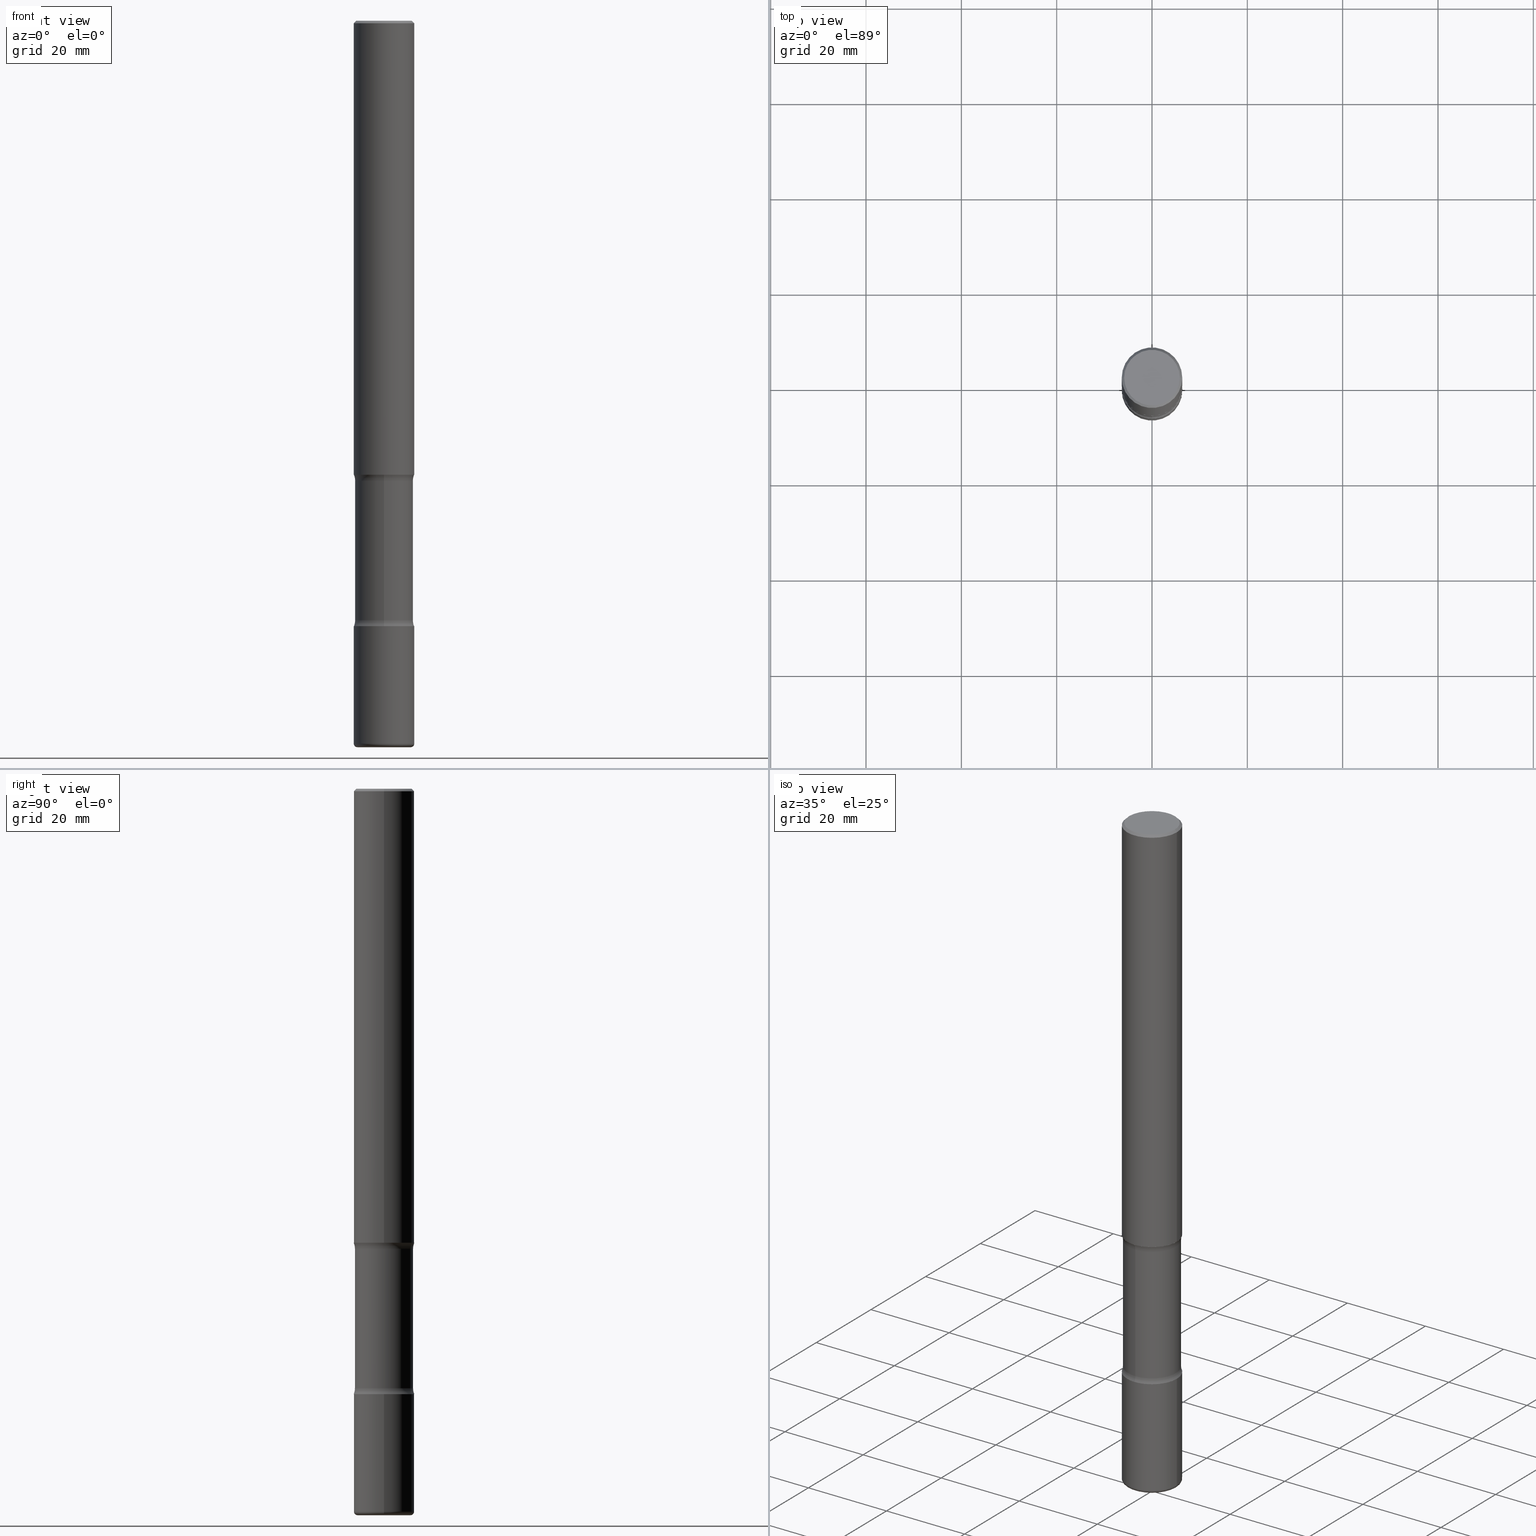
[diagram: canonical four-view strip — front | top / right | iso, engineering-drawing reading convention]
A machine part, canonical four-view strip (front | top / right | iso — engineering-drawing reading convention). The complete STEP part file that produces these views, byte-faithful:
ISO-10303-21;
HEADER;
FILE_DESCRIPTION (( 'STEP AP203' ),
    '1' );
FILE_NAME ('36462.STEP',
    '2024-03-01T23:55:01',
    ( '' ),
    ( '' ),
    'SwSTEP 2.0',
    'SolidWorks 2023',
    '' );
FILE_SCHEMA (( 'CONFIG_CONTROL_DESIGN' ));
ENDSEC;

DATA;
#1 = DIRECTION ( 'NONE',  ( -2.445468806185136597E-29, 3.491481338843145583E-15, 1.000000000000000000 ) ) ;
#2 = FACE_OUTER_BOUND ( 'NONE', #271, .T. ) ;
#3 = AXIS2_PLACEMENT_3D ( 'NONE', #476, #130, #420 ) ;
#4 = EDGE_CURVE ( 'NONE', #346, #444, #538, .T. ) ;
#5 = ORIENTED_EDGE ( 'NONE', *, *, #280, .T. ) ;
#6 = VERTEX_POINT ( 'NONE', #201 ) ;
#7 = AXIS2_PLACEMENT_3D ( 'NONE', #60, #192, #366 ) ;
#8 = AXIS2_PLACEMENT_3D ( 'NONE', #170, #344, #518 ) ;
#9 = EDGE_LOOP ( 'NONE', ( #102, #279, #296, #72 ) ) ;
#10 = DIRECTION ( 'NONE',  ( 6.982962677686265922E-15, 1.000000000000000000, -3.250820491503775713E-15 ) ) ;
#11 = VERTEX_POINT ( 'NONE', #368 ) ;
#12 = DIRECTION ( 'NONE',  ( 6.860497997771532351E-15, 1.000000000000000000, 0.000000000000000000 ) ) ;
#13 = FACE_OUTER_BOUND ( 'NONE', #212, .T. ) ;
#14 = CYLINDRICAL_SURFACE ( 'NONE', #459, 0.2400000000000001021 ) ;
#15 = EDGE_LOOP ( 'NONE', ( #172, #305 ) ) ;
#16 = DIRECTION ( 'NONE',  ( 2.613521377680253946E-29, -3.250820491503775713E-15, -1.000000000000000000 ) ) ;
#17 = TOROIDAL_SURFACE ( 'NONE', #26, 0.2200000000000002509, 0.03000000000000022787 ) ;
#18 = CARTESIAN_POINT ( 'NONE',  ( 1.484086540860593637E-28, -2.070822718571950481E-14, -6.000000000000000888 ) ) ;
#19 = LOCAL_TIME ( 18, 55, 1.000000000000000000, #281 ) ;
#20 = ORIENTED_EDGE ( 'NONE', *, *, #76, .T. ) ;
#21 = CARTESIAN_POINT ( 'NONE',  ( 0.2500000000000002220, -1.745740669421568255E-15, 1.219044193948984929E-29 ) ) ;
#22 = FACE_OUTER_BOUND ( 'NONE', #219, .T. ) ;
#23 = ORIENTED_EDGE ( 'NONE', *, *, #184, .F. ) ;
#24 = APPROVAL_ROLE ( '' ) ;
#25 = DIRECTION ( 'NONE',  ( -1.000000000000000000, 6.982962677686265922E-15, -4.883557194083112340E-29 ) ) ;
#26 = AXIS2_PLACEMENT_3D ( 'NONE', #367, #240, #387 ) ;
#27 = CARTESIAN_POINT ( 'NONE',  ( 8.960442308825365691E-29, -1.339388107983601044E-14, -3.750000000000000000 ) ) ;
#28 = ORGANIZATION ( 'UNSPECIFIED', 'UNSPECIFIED', '' ) ;
#29 = DESIGN_CONTEXT ( 'detailed design', #516, 'design' ) ;
#30 = DIRECTION ( 'NONE',  ( -1.000000000000000000, 7.105427357600937172E-15, 0.000000000000000000 ) ) ;
#31 = CARTESIAN_POINT ( 'NONE',  ( 1.459944877292526494E-28, -2.084414359289357934E-14, -5.969999999999999751 ) ) ;
#32 = DIRECTION ( 'NONE',  ( 1.000000000000000000, -6.982962677686265922E-15, 0.000000000000000000 ) ) ;
#33 = EDGE_CURVE ( 'NONE', #54, #526, #449, .T. ) ;
#34 = VECTOR ( 'NONE', #105, 39.37007874015748143 ) ;
#35 = ADVANCED_FACE ( 'NONE', ( #505 ), #138, .F. ) ;
#36 = DIRECTION ( 'NONE',  ( 1.000000000000000000, -6.982962677686267499E-15, 0.000000000000000000 ) ) ;
#37 = EDGE_LOOP ( 'NONE', ( #451, #287 ) ) ;
#38 = CARTESIAN_POINT ( 'NONE',  ( 0.000000000000000000, 0.000000000000000000, 0.000000000000000000 ) ) ;
#39 = DIRECTION ( 'NONE',  ( 6.982962677686265922E-15, 1.000000000000000000, -4.370956789862817994E-15 ) ) ;
#40 = ORIENTED_EDGE ( 'NONE', *, *, #146, .T. ) ;
#41 = AXIS2_PLACEMENT_3D ( 'NONE', #531, #301, #439 ) ;
#42 = AXIS2_PLACEMENT_3D ( 'NONE', #38, #341, #426 ) ;
#43 = CIRCLE ( 'NONE', #160, 0.03000000000000022787 ) ;
#44 = EDGE_LOOP ( 'NONE', ( #23, #151, #320, #530 ) ) ;
#45 = DIRECTION ( 'NONE',  ( -2.445468806185136877E-29, 3.491481338843145188E-15, 1.000000000000000000 ) ) ;
#46 = PLANE ( 'NONE',  #549 ) ;
#47 = EDGE_CURVE ( 'NONE', #479, #440, #407, .T. ) ;
#48 = EDGE_LOOP ( 'NONE', ( #535, #231 ) ) ;
#49 = CARTESIAN_POINT ( 'NONE',  ( 1.745740669421659566E-15, 0.2499999999999870937, -3.750000000000000888 ) ) ;
#50 = ORIENTED_EDGE ( 'NONE', *, *, #288, .F. ) ;
#51 = FACE_OUTER_BOUND ( 'NONE', #429, .T. ) ;
#52 = AXIS2_PLACEMENT_3D ( 'NONE', #333, #463, #120 ) ;
#53 = AXIS2_PLACEMENT_3D ( 'NONE', #195, #491, #158 ) ;
#54 = VERTEX_POINT ( 'NONE', #157 ) ;
#55 = DIRECTION ( 'NONE',  ( 2.613521377680253386E-29, -3.250820491503775713E-15, -1.000000000000000000 ) ) ;
#56 = CYLINDRICAL_SURFACE ( 'NONE', #63, 0.2500000000000002220 ) ;
#57 = EDGE_LOOP ( 'NONE', ( #396, #257, #490, #523 ) ) ;
#58 = CARTESIAN_POINT ( 'NONE',  ( 4.890937612370289799E-31, -6.982962677686315028E-17, -0.02000000000000006981 ) ) ;
#59 = CC_DESIGN_PERSON_AND_ORGANIZATION_ASSIGNMENT ( #335, #122, ( #83 ) ) ;
#60 = CARTESIAN_POINT ( 'NONE',  ( 9.088478184968812142E-29, -1.355313810882736568E-14, -3.798989794855663682 ) ) ;
#61 = ORIENTED_EDGE ( 'NONE', *, *, #190, .T. ) ;
#62 = PLANE ( 'NONE',  #328 ) ;
#63 = AXIS2_PLACEMENT_3D ( 'NONE', #278, #448, #156 ) ;
#64 = CALENDAR_DATE ( 2024, 1, 3 ) ;
#65 = EDGE_CURVE ( 'NONE', #224, #440, #180, .T. ) ;
#66 = SECURITY_CLASSIFICATION ( '', '', #436 ) ;
#67 = CARTESIAN_POINT ( 'NONE',  ( 2.548781377355608597E-15, 0.3649999999999827827, -4.951010205144337206 ) ) ;
#68 = DIRECTION ( 'NONE',  ( 6.982962677686265922E-15, 1.000000000000000000, -3.250820491503775319E-15 ) ) ;
#69 = ADVANCED_FACE ( 'NONE', ( #77 ), #371, .T. ) ;
#70 = LINE ( 'NONE', #453, #299 ) ;
#71 = DIRECTION ( 'NONE',  ( -2.445468806185136597E-29, 3.491481338843145583E-15, 1.000000000000000000 ) ) ;
#72 = ORIENTED_EDGE ( 'NONE', *, *, #329, .F. ) ;
#73 = EDGE_CURVE ( 'NONE', #6, #475, #353, .T. ) ;
#74 = EDGE_CURVE ( 'NONE', #284, #475, #213, .T. ) ;
#75 = EDGE_CURVE ( 'NONE', #11, #479, #117, .T. ) ;
#76 = EDGE_CURVE ( 'NONE', #103, #95, #327, .T. ) ;
#77 = FACE_OUTER_BOUND ( 'NONE', #355, .T. ) ;
#78 = VECTOR ( 'NONE', #275, 39.37007874015748143 ) ;
#79 = TOROIDAL_SURFACE ( 'NONE', #188, 0.3650000000000000466, 0.1249999999999997780 ) ;
#80 = DIRECTION ( 'NONE',  ( 2.613521377680253946E-29, -3.250820491503775319E-15, -1.000000000000000000 ) ) ;
#81 = PERSON_AND_ORGANIZATION ( #107, #28 ) ;
#82 = FACE_OUTER_BOUND ( 'NONE', #276, .T. ) ;
#83 = PRODUCT_DEFINITION ( 'UNKNOWN', '', #125, #29 ) ;
#84 = CARTESIAN_POINT ( 'NONE',  ( -1.715124499442796116E-15, -0.2500000000000137668, -3.749999999999999556 ) ) ;
#85 = SHAPE_DEFINITION_REPRESENTATION ( #243, #114 ) ;
#86 = AXIS2_PLACEMENT_3D ( 'NONE', #242, #25, #418 ) ;
#87 = CIRCLE ( 'NONE', #8, 0.2399999999999999634 ) ;
#88 = ORIENTED_EDGE ( 'NONE', *, *, #280, .F. ) ;
#89 = DIRECTION ( 'NONE',  ( -2.445468806185136877E-29, 3.491481338843145188E-15, 1.000000000000000000 ) ) ;
#90 = DIMENSIONAL_EXPONENTS ( 1.000000000000000000, 0.000000000000000000, 0.000000000000000000, 0.000000000000000000, 0.000000000000000000, 0.000000000000000000, 0.000000000000000000 ) ;
#91 = ADVANCED_FACE ( 'NONE', ( #2 ), #46, .F. ) ;
#92 = CYLINDRICAL_SURFACE ( 'NONE', #539, 0.2400000000000001021 ) ;
#93 = APPROVAL_ROLE ( '' ) ;
#94 = EDGE_CURVE ( 'NONE', #494, #388, #106, .T. ) ;
#95 = VERTEX_POINT ( 'NONE', #363 ) ;
#96 = VERTEX_POINT ( 'NONE', #270 ) ;
#97 = CLOSED_SHELL ( 'NONE', ( #351, #399, #69, #508, #513, #430 ) ) ;
#98 = APPROVAL_PERSON_ORGANIZATION ( #304, #497, #93 ) ;
#99 = ORIENTED_EDGE ( 'NONE', *, *, #264, .F. ) ;
#100 = CARTESIAN_POINT ( 'NONE',  ( 0.2500000000000000000, -1.745740669421566678E-15, 1.219044193948983948E-29 ) ) ;
#101 = DIRECTION ( 'NONE',  ( 1.000000000000000000, -6.982962677686265922E-15, 0.000000000000000000 ) ) ;
#102 = ORIENTED_EDGE ( 'NONE', *, *, #258, .T. ) ;
#103 = VERTEX_POINT ( 'NONE', #112 ) ;
#104 = DIRECTION ( 'NONE',  ( 2.438088387897960049E-29, -3.491481338843145188E-15, -1.000000000000000000 ) ) ;
#105 = DIRECTION ( 'NONE',  ( -2.445468806185136877E-29, 3.491481338843145188E-15, 1.000000000000000000 ) ) ;
#106 = CIRCLE ( 'NONE', #338, 0.2500000000000001665 ) ;
#107 = PERSON ( 'UNSPECIFIED', 'UNSPECIFIED', 'UNSPECIFIED', ('UNSPECIFIED'), ('UNSPECIFIED'), ('UNSPECIFIED') ) ;
#108 = LOCAL_TIME ( 18, 55, 1.000000000000000000, #196 ) ;
#109 = DIRECTION ( 'NONE',  ( 2.613521377680253946E-29, -3.250820491503775319E-15, -1.000000000000000000 ) ) ;
#110 = ORIENTED_EDGE ( 'NONE', *, *, #470, .F. ) ;
#111 = ADVANCED_FACE ( 'NONE', ( #541 ), #56, .T. ) ;
#112 = CARTESIAN_POINT ( 'NONE',  ( 0.2500000000000003331, -2.258988426231514917E-14, -5.969999999999999751 ) ) ;
#113 = ORIENTED_EDGE ( 'NONE', *, *, #73, .F. ) ;
#114 = ADVANCED_BREP_SHAPE_REPRESENTATION ( '36462', ( #139, #502, #136, #522 ), #261 ) ;
#115 = DIRECTION ( 'NONE',  ( -6.982962677686265133E-15, -1.000000000000000000, 0.000000000000000000 ) ) ;
#116 = FACE_OUTER_BOUND ( 'NONE', #365, .T. ) ;
#117 = CIRCLE ( 'NONE', #394, 0.2500000000000001665 ) ;
#118 = VECTOR ( 'NONE', #16, 39.37007874015748143 ) ;
#119 = DIRECTION ( 'NONE',  ( 2.445468806185136597E-29, -3.491481338843145583E-15, -1.000000000000000000 ) ) ;
#120 = DIRECTION ( 'NONE',  ( 1.000000000000000000, -6.982962677686274599E-15, 0.000000000000000000 ) ) ;
#121 = CARTESIAN_POINT ( 'NONE',  ( 4.890937612370289799E-31, -6.982962677686315028E-17, -0.02000000000000006981 ) ) ;
#122 = PERSON_AND_ORGANIZATION_ROLE ( 'creator' ) ;
#123 = AXIS2_PLACEMENT_3D ( 'NONE', #67, #238, #115 ) ;
#124 = AXIS2_PLACEMENT_3D ( 'NONE', #202, #253, #36 ) ;
#125 = PRODUCT_DEFINITION_FORMATION_WITH_SPECIFIED_SOURCE ( 'ANY', '', #417, .NOT_KNOWN. ) ;
#126 = CARTESIAN_POINT ( 'NONE',  ( -0.2500000000000002220, -4.805085484319072003E-15, -3.750000000000000000 ) ) ;
#127 = APPROVAL ( #458, 'UNSPECIFIED' ) ;
#128 = COORDINATED_UNIVERSAL_TIME_OFFSET ( 5, 0, .BEHIND. ) ;
#129 = CARTESIAN_POINT ( 'NONE',  ( 1.222734403092568523E-28, -1.745740669421572989E-14, -5.000000000000000000 ) ) ;
#130 = DIRECTION ( 'NONE',  ( 2.613521377680253946E-29, -3.250820491503775319E-15, -1.000000000000000000 ) ) ;
#131 = ADVANCED_FACE ( 'NONE', ( #22 ), #527, .F. ) ;
#132 = CIRCLE ( 'NONE', #220, 0.2499999999999997502 ) ;
#133 = CIRCLE ( 'NONE', #124, 0.2499999999999997502 ) ;
#134 = FACE_OUTER_BOUND ( 'NONE', #207, .T. ) ;
#135 = CARTESIAN_POINT ( 'NONE',  ( -2.504081769186517891E-15, -0.3650000000000135914, -3.798989794855662794 ) ) ;
#136 = MANIFOLD_SOLID_BREP ( 'Body-Move/Copy2[4]', #359 ) ;
#137 = ORIENTED_EDGE ( 'NONE', *, *, #94, .F. ) ;
#138 = TOROIDAL_SURFACE ( 'NONE', #521, 0.3650000000000000466, 0.1249999999999997780 ) ;
#139 = MANIFOLD_SOLID_BREP ( 'Body-Move/Copy2[1]', #306 ) ;
#140 = ADVANCED_FACE ( 'NONE', ( #228 ), #14, .T. ) ;
#141 = DIRECTION ( 'NONE',  ( -2.445468806185136597E-29, 3.491481338843145583E-15, 1.000000000000000000 ) ) ;
#142 = ORIENTED_EDGE ( 'NONE', *, *, #329, .T. ) ;
#143 = EDGE_LOOP ( 'NONE', ( #492, #385, #485, #137 ) ) ;
#144 = LINE ( 'NONE', #274, #421 ) ;
#145 = EDGE_CURVE ( 'NONE', #147, #6, #291, .T. ) ;
#146 = EDGE_CURVE ( 'NONE', #526, #54, #348, .T. ) ;
#147 = VERTEX_POINT ( 'NONE', #397 ) ;
#148 = AXIS2_PLACEMENT_3D ( 'NONE', #424, #205, #30 ) ;
#149 = TOROIDAL_SURFACE ( 'NONE', #214, 0.3650000000000000466, 0.1250000000000000278 ) ;
#150 = DIRECTION ( 'NONE',  ( 6.982962677686265922E-15, 1.000000000000000000, -4.553079989440436725E-15 ) ) ;
#151 = ORIENTED_EDGE ( 'NONE', *, *, #340, .T. ) ;
#152 = VERTEX_POINT ( 'NONE', #221 ) ;
#153 = FACE_OUTER_BOUND ( 'NONE', #191, .T. ) ;
#154 = DIRECTION ( 'NONE',  ( -2.445468806185136597E-29, 3.491481338843145583E-15, 1.000000000000000000 ) ) ;
#155 = EDGE_CURVE ( 'NONE', #11, #224, #482, .T. ) ;
#156 = DIRECTION ( 'NONE',  ( 1.000000000000000000, -6.982962677686266711E-15, 4.876176775795935232E-29 ) ) ;
#157 = CARTESIAN_POINT ( 'NONE',  ( -0.2200000000000001676, -1.922674038393998831E-14, -6.000000000000000888 ) ) ;
#158 = DIRECTION ( 'NONE',  ( 1.000000000000000000, -6.982962677686264344E-15, 0.000000000000000000 ) ) ;
#159 = AXIS2_PLACEMENT_3D ( 'NONE', #462, #71, #262 ) ;
#160 = AXIS2_PLACEMENT_3D ( 'NONE', #166, #297, #209 ) ;
#161 = CARTESIAN_POINT ( 'NONE',  ( 9.099547112526501534E-29, -1.353728677456052570E-14, -3.798989794855663682 ) ) ;
#162 = DIRECTION ( 'NONE',  ( 0.7071067811865473507, -7.319954787623256045E-15, -0.7071067811865476838 ) ) ;
#163 = ORIENTED_EDGE ( 'NONE', *, *, #524, .F. ) ;
#164 = DIRECTION ( 'NONE',  ( 6.982962677686265922E-15, 1.000000000000000000, -2.185478394931406236E-15 ) ) ;
#165 = CALENDAR_DATE ( 2024, 1, 3 ) ;
#166 = CARTESIAN_POINT ( 'NONE',  ( 0.2200000000000002509, -2.238039538198455928E-14, -5.969999999999999751 ) ) ;
#167 = CALENDAR_DATE ( 2024, 1, 3 ) ;
#168 = DIRECTION ( 'NONE',  ( 2.438088387897960049E-29, -3.491481338843145188E-15, -1.000000000000000000 ) ) ;
#169 = ORIENTED_EDGE ( 'NONE', *, *, #524, .T. ) ;
#170 = CARTESIAN_POINT ( 'NONE',  ( 1.209930815478223541E-28, -1.729814966522437149E-14, -4.951010205144336318 ) ) ;
#171 = CC_DESIGN_PERSON_AND_ORGANIZATION_ASSIGNMENT ( #548, #545, ( #125 ) ) ;
#172 = ORIENTED_EDGE ( 'NONE', *, *, #378, .T. ) ;
#173 = DIRECTION ( 'NONE',  ( 1.000000000000000000, -6.982962677686266711E-15, 4.876176775795935793E-29 ) ) ;
#174 = CIRCLE ( 'NONE', #206, 0.2400000000000002409 ) ;
#175 = AXIS2_PLACEMENT_3D ( 'NONE', #559, #374, #511 ) ;
#176 = CARTESIAN_POINT ( 'NONE',  ( 1.222734403092568523E-28, -1.745740669421572989E-14, -5.000000000000000000 ) ) ;
#177 = EDGE_CURVE ( 'NONE', #444, #346, #260, .T. ) ;
#178 = EDGE_CURVE ( 'NONE', #103, #388, #233, .T. ) ;
#179 = ORIENTED_EDGE ( 'NONE', *, *, #264, .T. ) ;
#180 = CIRCLE ( 'NONE', #427, 0.2399999999999999634 ) ;
#181 = CIRCLE ( 'NONE', #450, 0.2500000000000002220 ) ;
#182 = ORIENTED_EDGE ( 'NONE', *, *, #315, .T. ) ;
#183 = ORIENTED_EDGE ( 'NONE', *, *, #378, .F. ) ;
#184 = EDGE_CURVE ( 'NONE', #370, #152, #321, .T. ) ;
#185 = ORIENTED_EDGE ( 'NONE', *, *, #203, .F. ) ;
#186 =( NAMED_UNIT ( * ) PLANE_ANGLE_UNIT ( ) SI_UNIT ( $, .RADIAN. ) );
#187 = AXIS2_PLACEMENT_3D ( 'NONE', #215, #445, #442 ) ;
#188 = AXIS2_PLACEMENT_3D ( 'NONE', #461, #501, #68 ) ;
#189 = PERSON_AND_ORGANIZATION ( #107, #28 ) ;
#190 = EDGE_CURVE ( 'NONE', #400, #152, #132, .T. ) ;
#191 = EDGE_LOOP ( 'NONE', ( #163, #311 ) ) ;
#192 = DIRECTION ( 'NONE',  ( 2.613521377680253946E-29, -3.250820491503775319E-15, -1.000000000000000000 ) ) ;
#193 = MECHANICAL_CONTEXT ( 'NONE', #227, 'mechanical' ) ;
#194 = ORIENTED_EDGE ( 'NONE', *, *, #4, .F. ) ;
#195 = CARTESIAN_POINT ( 'NONE',  ( 9.170508023194262238E-29, -1.309305502066179741E-14, -3.750000000000000000 ) ) ;
#196 = COORDINATED_UNIVERSAL_TIME_OFFSET ( 5, 0, .BEHIND. ) ;
#197 = DIRECTION ( 'NONE',  ( 6.982962677686265922E-15, 1.000000000000000000, -3.250820491503775319E-15 ) ) ;
#198 = CARTESIAN_POINT ( 'NONE',  ( 9.170508023194262238E-29, -1.309305502066179741E-14, -3.750000000000000000 ) ) ;
#199 = TOROIDAL_SURFACE ( 'NONE', #380, 0.2200000000000002509, 0.03000000000000022787 ) ;
#200 = DIRECTION ( 'NONE',  ( 6.982962677686265922E-15, 1.000000000000000000, -2.185478394931406236E-15 ) ) ;
#201 = CARTESIAN_POINT ( 'NONE',  ( 1.675911042644796465E-15, 0.2399999999999866962, -3.798989794855664570 ) ) ;
#202 = CARTESIAN_POINT ( 'NONE',  ( 4.890937612370289799E-31, -6.982962677686315028E-17, -0.02000000000000006981 ) ) ;
#203 = EDGE_CURVE ( 'NONE', #346, #152, #70, .T. ) ;
#204 = DIRECTION ( 'NONE',  ( 2.613521377680253946E-29, -3.250820491503775319E-15, -1.000000000000000000 ) ) ;
#205 = DIRECTION ( 'NONE',  ( 7.105427357601001859E-15, 1.000000000000000000, -3.491481338843145583E-15 ) ) ;
#206 = AXIS2_PLACEMENT_3D ( 'NONE', #241, #293, #250 ) ;
#207 = EDGE_LOOP ( 'NONE', ( #540, #229, #142, #350 ) ) ;
#208 = ADVANCED_FACE ( 'NONE', ( #51 ), #222, .F. ) ;
#209 = DIRECTION ( 'NONE',  ( 1.000000000000000000, -6.982962677686215435E-15, 0.000000000000000000 ) ) ;
#210 = CARTESIAN_POINT ( 'NONE',  ( -0.2299999999999997047, 1.640996229256270744E-15, -1.135408596578604579E-29 ) ) ;
#211 = COORDINATED_UNIVERSAL_TIME_OFFSET ( 5, 0, .BEHIND. ) ;
#212 = EDGE_LOOP ( 'NONE', ( #40, #5, #446, #266 ) ) ;
#213 = CIRCLE ( 'NONE', #419, 0.2500000000000004996 ) ;
#214 = AXIS2_PLACEMENT_3D ( 'NONE', #547, #226, #544 ) ;
#215 = CARTESIAN_POINT ( 'NONE',  ( 1.459944877292526494E-28, -2.084414359289357934E-14, -5.969999999999999751 ) ) ;
#216 = DIRECTION ( 'NONE',  ( 1.000000000000000000, -6.860497997771530774E-15, 4.843746124987885538E-29 ) ) ;
#217 = ORIENTED_EDGE ( 'NONE', *, *, #177, .F. ) ;
#218 =( NAMED_UNIT ( * ) SI_UNIT ( $, .STERADIAN. ) SOLID_ANGLE_UNIT ( ) );
#219 = EDGE_LOOP ( 'NONE', ( #314, #183, #454, #560 ) ) ;
#220 = AXIS2_PLACEMENT_3D ( 'NONE', #58, #154, #496 ) ;
#221 = CARTESIAN_POINT ( 'NONE',  ( -0.2499999999999997502, 1.675911042644701999E-15, -0.02000000000000006981 ) ) ;
#222 = PLANE ( 'NONE',  #272 ) ;
#223 = CARTESIAN_POINT ( 'NONE',  ( 1.210754101578474788E-28, -1.728635973968342417E-14, -4.951010205144336318 ) ) ;
#224 = VERTEX_POINT ( 'NONE', #402 ) ;
#225 = CARTESIAN_POINT ( 'NONE',  ( -2.504081769186488309E-15, -0.3650000000000173661, -4.951010205144335430 ) ) ;
#226 = DIRECTION ( 'NONE',  ( 2.613521377680253946E-29, -3.250820491503775319E-15, -1.000000000000000000 ) ) ;
#227 = APPLICATION_CONTEXT ( 'configuration controlled 3d designs of mechanical parts and assemblies' ) ;
#228 = FACE_OUTER_BOUND ( 'NONE', #9, .T. ) ;
#229 = ORIENTED_EDGE ( 'NONE', *, *, #145, .T. ) ;
#230 = DIRECTION ( 'NONE',  ( 1.000000000000000000, -6.982962677686265922E-15, 4.876176775795935793E-29 ) ) ;
#231 = ORIENTED_EDGE ( 'NONE', *, *, #177, .T. ) ;
#232 = CIRCLE ( 'NONE', #555, 0.2500000000000002220 ) ;
#233 = LINE ( 'NONE', #21, #34 ) ;
#234 = AXIS2_PLACEMENT_3D ( 'NONE', #135, #441, #267 ) ;
#235 = DATE_AND_TIME ( #64, #19 ) ;
#236 = ADVANCED_FACE ( 'NONE', ( #13 ), #17, .T. ) ;
#237 = DIRECTION ( 'NONE',  ( 2.613521377680253946E-29, -3.250820491503775319E-15, -1.000000000000000000 ) ) ;
#238 = DIRECTION ( 'NONE',  ( -1.000000000000000000, 6.982962677686265922E-15, -4.883557194083112340E-29 ) ) ;
#239 = DIRECTION ( 'NONE',  ( -1.000000000000000000, 6.982962677686265922E-15, -4.876176775795935793E-29 ) ) ;
#240 = DIRECTION ( 'NONE',  ( -2.445468806185136597E-29, 3.491481338843145583E-15, 1.000000000000000000 ) ) ;
#241 = CARTESIAN_POINT ( 'NONE',  ( 9.088478184968812142E-29, -1.355313810882736568E-14, -3.798989794855663682 ) ) ;
#242 = CARTESIAN_POINT ( 'NONE',  ( 2.548781377355579015E-15, 0.3649999999999865574, -3.798989794855665014 ) ) ;
#243 = PRODUCT_DEFINITION_SHAPE ( 'NONE', 'NONE',  #83 ) ;
#244 = EDGE_CURVE ( 'NONE', #95, #103, #232, .T. ) ;
#245 = AXIS2_PLACEMENT_3D ( 'NONE', #377, #204, #164 ) ;
#246 = UNCERTAINTY_MEASURE_WITH_UNIT (LENGTH_MEASURE( 1.000000000000000082E-05 ), #455, 'distance_accuracy_value', 'NONE');
#247 = PERSON_AND_ORGANIZATION ( #107, #28 ) ;
#248 = DIRECTION ( 'NONE',  ( 6.982962677686265922E-15, 1.000000000000000000, -4.553079989440436725E-15 ) ) ;
#249 = APPROVAL_DATE_TIME ( #286, #127 ) ;
#250 = DIRECTION ( 'NONE',  ( 6.982962677686265922E-15, 1.000000000000000000, -2.276539994720217179E-15 ) ) ;
#251 = LINE ( 'NONE', #472, #489 ) ;
#252 = ADVANCED_FACE ( 'NONE', ( #401 ), #393, .F. ) ;
#253 = DIRECTION ( 'NONE',  ( -2.445468806185136597E-29, 3.491481338843145583E-15, 1.000000000000000000 ) ) ;
#254 = ADVANCED_FACE ( 'NONE', ( #307 ), #199, .T. ) ;
#255 = CONICAL_SURFACE ( 'NONE', #389, 0.2499999999999997502, 0.7853981633974480570 ) ;
#256 = FACE_OUTER_BOUND ( 'NONE', #44, .T. ) ;
#257 = ORIENTED_EDGE ( 'NONE', *, *, #155, .T. ) ;
#258 = EDGE_CURVE ( 'NONE', #6, #147, #174, .T. ) ;
#259 = APPROVAL ( #493, 'UNSPECIFIED' ) ;
#260 = CIRCLE ( 'NONE', #477, 0.2299999999999997047 ) ;
#261 =( GEOMETRIC_REPRESENTATION_CONTEXT ( 3 ) GLOBAL_UNCERTAINTY_ASSIGNED_CONTEXT ( ( #246 ) ) GLOBAL_UNIT_ASSIGNED_CONTEXT ( ( #455, #186, #218 ) ) REPRESENTATION_CONTEXT ( 'NONE', 'WORKASPACE' ) );
#262 = DIRECTION ( 'NONE',  ( 1.000000000000000000, -6.982962677686274599E-15, 0.000000000000000000 ) ) ;
#263 = ORIENTED_EDGE ( 'NONE', *, *, #190, .F. ) ;
#264 = EDGE_CURVE ( 'NONE', #475, #284, #488, .T. ) ;
#265 = ADVANCED_FACE ( 'NONE', ( #302 ), #334, .T. ) ;
#266 = ORIENTED_EDGE ( 'NONE', *, *, #315, .F. ) ;
#267 = DIRECTION ( 'NONE',  ( 6.860497997771530774E-15, 1.000000000000000000, 0.000000000000000000 ) ) ;
#268 = CARTESIAN_POINT ( 'NONE',  ( -0.2500000000000000000, 1.776356839400250465E-15, -1.229733772563726445E-29 ) ) ;
#269 = ADVANCED_FACE ( 'NONE', ( #386 ), #557, .T. ) ;
#270 = CARTESIAN_POINT ( 'NONE',  ( 0.2500000000000002220, -1.483879569008336409E-14, -3.750000000000000000 ) ) ;
#271 = EDGE_LOOP ( 'NONE', ( #330, #343 ) ) ;
#272 = AXIS2_PLACEMENT_3D ( 'NONE', #398, #55, #10 ) ;
#273 = DIRECTION ( 'NONE',  ( -2.445468806185136597E-29, 3.491481338843145583E-15, 1.000000000000000000 ) ) ;
#274 = CARTESIAN_POINT ( 'NONE',  ( 0.2499999999999997502, -1.784954126219744217E-15, -0.02000000000000006981 ) ) ;
#275 = DIRECTION ( 'NONE',  ( -2.445468806185136877E-29, 3.491481338843145188E-15, 1.000000000000000000 ) ) ;
#276 = EDGE_LOOP ( 'NONE', ( #217, #533, #61, #185 ) ) ;
#277 = LENGTH_MEASURE_WITH_UNIT ( LENGTH_MEASURE( 0.02539999999999999897 ), #357 );
#278 = CARTESIAN_POINT ( 'NONE',  ( 0.000000000000000000, 0.000000000000000000, 0.000000000000000000 ) ) ;
#279 = ORIENTED_EDGE ( 'NONE', *, *, #532, .T. ) ;
#280 = EDGE_CURVE ( 'NONE', #54, #95, #467, .T. ) ;
#281 = COORDINATED_UNIVERSAL_TIME_OFFSET ( 5, 0, .BEHIND. ) ;
#282 = EDGE_LOOP ( 'NONE', ( #20, #405, #50, #558 ) ) ;
#283 = AXIS2_PLACEMENT_3D ( 'NONE', #225, #216, #12 ) ;
#284 = VERTEX_POINT ( 'NONE', #84 ) ;
#285 = CARTESIAN_POINT ( 'NONE',  ( 0.2200000000000001676, -2.248513982214985580E-14, -6.000000000000000888 ) ) ;
#286 = DATE_AND_TIME ( #165, #108 ) ;
#287 = ORIENTED_EDGE ( 'NONE', *, *, #33, .F. ) ;
#288 = EDGE_CURVE ( 'NONE', #388, #494, #500, .T. ) ;
#289 = CYLINDRICAL_SURFACE ( 'NONE', #438, 0.2500000000000000000 ) ;
#290 = AXIS2_PLACEMENT_3D ( 'NONE', #326, #119, #414 ) ;
#291 = CIRCLE ( 'NONE', #7, 0.2400000000000002409 ) ;
#292 = COORDINATED_UNIVERSAL_TIME_OFFSET ( 5, 0, .BEHIND. ) ;
#293 = DIRECTION ( 'NONE',  ( 2.613521377680253946E-29, -3.250820491503775319E-15, -1.000000000000000000 ) ) ;
#294 = DIRECTION ( 'NONE',  ( 2.445468806185136597E-29, -3.491481338843145583E-15, -1.000000000000000000 ) ) ;
#295 = DIRECTION ( 'NONE',  ( -2.445468806185136597E-29, 3.491481338843145583E-15, 1.000000000000000000 ) ) ;
#296 = ORIENTED_EDGE ( 'NONE', *, *, #415, .F. ) ;
#297 = DIRECTION ( 'NONE',  ( -6.982962677686266711E-15, -1.000000000000000000, 3.491481338843145583E-15 ) ) ;
#298 = PERSON_AND_ORGANIZATION ( #107, #28 ) ;
#299 = VECTOR ( 'NONE', #447, 39.37007874015748143 ) ;
#300 = AXIS2_PLACEMENT_3D ( 'NONE', #324, #104, #239 ) ;
#301 = DIRECTION ( 'NONE',  ( -2.613521377680253386E-29, 3.250820491503775713E-15, 1.000000000000000000 ) ) ;
#302 = FACE_OUTER_BOUND ( 'NONE', #37, .T. ) ;
#303 = EDGE_CURVE ( 'NONE', #152, #400, #133, .T. ) ;
#304 = PERSON_AND_ORGANIZATION ( #107, #28 ) ;
#305 = ORIENTED_EDGE ( 'NONE', *, *, #75, .T. ) ;
#306 = CLOSED_SHELL ( 'NONE', ( #269, #236, #265, #254, #111, #91 ) ) ;
#307 = FACE_OUTER_BOUND ( 'NONE', #313, .T. ) ;
#308 = CC_DESIGN_APPROVAL ( #259, ( #125 ) ) ;
#309 = DIRECTION ( 'NONE',  ( 1.000000000000000000, -6.982962677686272233E-15, 0.000000000000000000 ) ) ;
#310 = CC_DESIGN_PERSON_AND_ORGANIZATION_ASSIGNMENT ( #325, #498, ( #125 ) ) ;
#311 = ORIENTED_EDGE ( 'NONE', *, *, #340, .F. ) ;
#312 = LINE ( 'NONE', #100, #319 ) ;
#313 = EDGE_LOOP ( 'NONE', ( #88, #487, #182, #373 ) ) ;
#314 = ORIENTED_EDGE ( 'NONE', *, *, #155, .F. ) ;
#315 = EDGE_CURVE ( 'NONE', #526, #103, #43, .T. ) ;
#316 = AXIS2_PLACEMENT_3D ( 'NONE', #554, #168, #514 ) ;
#317 = CARTESIAN_POINT ( 'NONE',  ( 0.000000000000000000, 0.000000000000000000, 0.000000000000000000 ) ) ;
#318 = CARTESIAN_POINT ( 'NONE',  ( -0.2500000000000001665, -1.737441830415440257E-14, -5.000000000000000000 ) ) ;
#319 = VECTOR ( 'NONE', #45, 39.37007874015748143 ) ;
#320 = ORIENTED_EDGE ( 'NONE', *, *, #474, .T. ) ;
#321 = LINE ( 'NONE', #268, #78 ) ;
#322 = APPLICATION_PROTOCOL_DEFINITION ( 'international standard', 'config_control_design', 1994, #227 ) ;
#323 = DIRECTION ( 'NONE',  ( 2.613521377680253946E-29, -3.250820491503775319E-15, -1.000000000000000000 ) ) ;
#324 = CARTESIAN_POINT ( 'NONE',  ( 1.606081415867839095E-15, 0.2299999999999997047, -8.030407079339224072E-16 ) ) ;
#325 = PERSON_AND_ORGANIZATION ( #107, #28 ) ;
#326 = CARTESIAN_POINT ( 'NONE',  ( 4.890937612370289799E-31, -6.982962677686315028E-17, -0.02000000000000006981 ) ) ;
#327 = CIRCLE ( 'NONE', #187, 0.2500000000000002220 ) ;
#328 = AXIS2_PLACEMENT_3D ( 'NONE', #198, #536, #230 ) ;
#329 = EDGE_CURVE ( 'NONE', #6, #440, #383, .T. ) ;
#330 = ORIENTED_EDGE ( 'NONE', *, *, #288, .T. ) ;
#331 = CARTESIAN_POINT ( 'NONE',  ( -1.646519519465019451E-15, -0.2400000000000208078, -5.999999999999999112 ) ) ;
#332 = CARTESIAN_POINT ( 'NONE',  ( 0.000000000000000000, 0.000000000000000000, 0.000000000000000000 ) ) ;
#333 = CARTESIAN_POINT ( 'NONE',  ( 1.467281283711081958E-28, -2.094888803305887271E-14, -6.000000000000000888 ) ) ;
#334 = PLANE ( 'NONE',  #316 ) ;
#335 = PERSON_AND_ORGANIZATION ( #107, #28 ) ;
#336 = DIRECTION ( 'NONE',  ( 1.000000000000000000, -6.982962677686265133E-15, 4.883557194083112340E-29 ) ) ;
#337 = FACE_OUTER_BOUND ( 'NONE', #356, .T. ) ;
#338 = AXIS2_PLACEMENT_3D ( 'NONE', #352, #141, #101 ) ;
#339 = LOCAL_TIME ( 18, 55, 1.000000000000000000, #128 ) ;
#340 = EDGE_CURVE ( 'NONE', #370, #96, #181, .T. ) ;
#341 = DIRECTION ( 'NONE',  ( -2.445468806185136597E-29, 3.491481338843145583E-15, 1.000000000000000000 ) ) ;
#342 = CALENDAR_DATE ( 2024, 1, 3 ) ;
#343 = ORIENTED_EDGE ( 'NONE', *, *, #94, .T. ) ;
#344 = DIRECTION ( 'NONE',  ( 2.613521377680253946E-29, -3.250820491503775319E-15, -1.000000000000000000 ) ) ;
#345 = DATE_TIME_ROLE ( 'classification_date' ) ;
#346 = VERTEX_POINT ( 'NONE', #210 ) ;
#347 = CARTESIAN_POINT ( 'NONE',  ( 1.675911042644853066E-15, 0.2399999999999793965, -6.000000000000001776 ) ) ;
#348 = CIRCLE ( 'NONE', #159, 0.2200000000000001676 ) ;
#349 = AXIS2_PLACEMENT_3D ( 'NONE', #129, #295, #32 ) ;
#350 = ORIENTED_EDGE ( 'NONE', *, *, #65, .F. ) ;
#351 = ADVANCED_FACE ( 'NONE', ( #337 ), #520, .T. ) ;
#352 = CARTESIAN_POINT ( 'NONE',  ( 1.222734403092568523E-28, -1.745740669421572989E-14, -5.000000000000000000 ) ) ;
#353 = CIRCLE ( 'NONE', #86, 0.1249999999999997641 ) ;
#354 = ORIENTED_EDGE ( 'NONE', *, *, #203, .T. ) ;
#355 = EDGE_LOOP ( 'NONE', ( #392, #194, #354, #390 ) ) ;
#356 = EDGE_LOOP ( 'NONE', ( #169, #551, #263, #360 ) ) ;
#357 =( LENGTH_UNIT ( ) NAMED_UNIT ( * ) SI_UNIT ( $, .METRE. ) );
#358 = CC_DESIGN_DATE_AND_TIME_ASSIGNMENT ( #423, #369, ( #83 ) ) ;
#359 = CLOSED_SHELL ( 'NONE', ( #140, #515, #35, #519, #208, #252, #131, #435 ) ) ;
#360 = ORIENTED_EDGE ( 'NONE', *, *, #474, .F. ) ;
#361 = APPROVAL_PERSON_ORGANIZATION ( #247, #127, #24 ) ;
#362 = LOCAL_TIME ( 18, 55, 1.000000000000000000, #292 ) ;
#363 = CARTESIAN_POINT ( 'NONE',  ( -0.2500000000000003331, -1.906778675349332572E-14, -5.969999999999999751 ) ) ;
#364 = DIRECTION ( 'NONE',  ( 0.000000000000000000, 0.000000000000000000, 1.000000000000000000 ) ) ;
#365 = EDGE_LOOP ( 'NONE', ( #110, #517, #483, #179 ) ) ;
#366 = DIRECTION ( 'NONE',  ( 6.982962677686265922E-15, 1.000000000000000000, -2.276539994720217179E-15 ) ) ;
#367 = CARTESIAN_POINT ( 'NONE',  ( 1.459944877292526494E-28, -2.084414359289357934E-14, -5.969999999999999751 ) ) ;
#368 = CARTESIAN_POINT ( 'NONE',  ( -1.715124499442761603E-15, -0.2500000000000175970, -4.999999999999999112 ) ) ;
#369 = DATE_TIME_ROLE ( 'creation_date' ) ;
#370 = VERTEX_POINT ( 'NONE', #126 ) ;
#371 = CONICAL_SURFACE ( 'NONE', #290, 0.2499999999999997502, 0.7853981633974480570 ) ;
#372 = CIRCLE ( 'NONE', #3, 0.2500000000000001665 ) ;
#373 = ORIENTED_EDGE ( 'NONE', *, *, #244, .F. ) ;
#374 = DIRECTION ( 'NONE',  ( -2.445468806185136597E-29, 3.491481338843145583E-15, 1.000000000000000000 ) ) ;
#375 = PERSON_AND_ORGANIZATION_ROLE ( 'design_owner' ) ;
#376 = DIRECTION ( 'NONE',  ( -2.445468806185136597E-29, 3.491481338843145583E-15, 1.000000000000000000 ) ) ;
#377 = CARTESIAN_POINT ( 'NONE',  ( 8.960442308825365691E-29, -1.339388107983601044E-14, -3.750000000000000000 ) ) ;
#378 = EDGE_CURVE ( 'NONE', #479, #11, #372, .T. ) ;
#379 = CARTESIAN_POINT ( 'NONE',  ( 9.170508023194262238E-29, -1.309305502066179741E-14, -3.750000000000000000 ) ) ;
#380 = AXIS2_PLACEMENT_3D ( 'NONE', #553, #382, #336 ) ;
#381 = CC_DESIGN_APPROVAL ( #497, ( #66 ) ) ;
#382 = DIRECTION ( 'NONE',  ( -2.445468806185136597E-29, 3.491481338843145583E-15, 1.000000000000000000 ) ) ;
#383 = LINE ( 'NONE', #347, #428 ) ;
#384 = CARTESIAN_POINT ( 'NONE',  ( 1.222734403092568523E-28, -1.745740669421572989E-14, -5.000000000000000000 ) ) ;
#385 = ORIENTED_EDGE ( 'NONE', *, *, #244, .T. ) ;
#386 = FACE_OUTER_BOUND ( 'NONE', #282, .T. ) ;
#387 = DIRECTION ( 'NONE',  ( 1.000000000000000000, -6.982962677686265133E-15, 4.883557194083112340E-29 ) ) ;
#388 = VERTEX_POINT ( 'NONE', #480 ) ;
#389 = AXIS2_PLACEMENT_3D ( 'NONE', #121, #294, #552 ) ;
#390 = ORIENTED_EDGE ( 'NONE', *, *, #303, .T. ) ;
#391 = DIRECTION ( 'NONE',  ( -1.000000000000000000, 6.982962677686265922E-15, -4.876176775795935793E-29 ) ) ;
#392 = ORIENTED_EDGE ( 'NONE', *, *, #486, .F. ) ;
#393 = PLANE ( 'NONE',  #41 ) ;
#394 = AXIS2_PLACEMENT_3D ( 'NONE', #384, #529, #39 ) ;
#395 = CIRCLE ( 'NONE', #234, 0.1249999999999997641 ) ;
#396 = ORIENTED_EDGE ( 'NONE', *, *, #75, .F. ) ;
#397 = CARTESIAN_POINT ( 'NONE',  ( -1.680822009453936675E-15, -0.2400000000000137856, -3.798989794855663238 ) ) ;
#398 = CARTESIAN_POINT ( 'NONE',  ( 9.170508023194262238E-29, -1.309305502066179741E-14, -3.750000000000000000 ) ) ;
#399 = ADVANCED_FACE ( 'NONE', ( #82 ), #255, .T. ) ;
#400 = VERTEX_POINT ( 'NONE', #471 ) ;
#401 = FACE_OUTER_BOUND ( 'NONE', #15, .T. ) ;
#402 = CARTESIAN_POINT ( 'NONE',  ( -1.680822009453903740E-15, -0.2400000000000172828, -4.951010205144335430 ) ) ;
#403 = CC_DESIGN_PERSON_AND_ORGANIZATION_ASSIGNMENT ( #298, #512, ( #66 ) ) ;
#404 = DIRECTION ( 'NONE',  ( 2.613521377680253946E-29, -3.250820491503775319E-15, -1.000000000000000000 ) ) ;
#405 = ORIENTED_EDGE ( 'NONE', *, *, #413, .T. ) ;
#406 = DIRECTION ( 'NONE',  ( -2.445468806185136597E-29, 3.491481338843145583E-15, 1.000000000000000000 ) ) ;
#407 = CIRCLE ( 'NONE', #123, 0.1250000000000000278 ) ;
#408 = ORIENTED_EDGE ( 'NONE', *, *, #74, .F. ) ;
#409 = LOCAL_TIME ( 18, 55, 1.000000000000000000, #211 ) ;
#410 = FACE_OUTER_BOUND ( 'NONE', #57, .T. ) ;
#411 = APPROVAL_DATE_TIME ( #235, #259 ) ;
#412 = CARTESIAN_POINT ( 'NONE',  ( 0.000000000000000000, 0.000000000000000000, 0.000000000000000000 ) ) ;
#413 = EDGE_CURVE ( 'NONE', #95, #494, #251, .T. ) ;
#414 = DIRECTION ( 'NONE',  ( -1.000000000000000000, 6.982962677686267499E-15, 0.000000000000000000 ) ) ;
#415 = EDGE_CURVE ( 'NONE', #440, #224, #87, .T. ) ;
#416 = APPLICATION_PROTOCOL_DEFINITION ( 'international standard', 'config_control_design', 1994, #516 ) ;
#417 = PRODUCT ( '36462', '36462', '', ( #193 ) ) ;
#418 = DIRECTION ( 'NONE',  ( -6.982962677686266711E-15, -1.000000000000000000, 0.000000000000000000 ) ) ;
#419 = AXIS2_PLACEMENT_3D ( 'NONE', #27, #109, #200 ) ;
#420 = DIRECTION ( 'NONE',  ( 6.982962677686265922E-15, 1.000000000000000000, -4.370956789862817994E-15 ) ) ;
#421 = VECTOR ( 'NONE', #162, 39.37007874015748143 ) ;
#422 = DIRECTION ( 'NONE',  ( 1.000000000000000000, -6.982962677686264344E-15, 0.000000000000000000 ) ) ;
#423 = DATE_AND_TIME ( #465, #362 ) ;
#424 = CARTESIAN_POINT ( 'NONE',  ( -0.2200000000000002509, -1.928094957422135438E-14, -5.969999999999999751 ) ) ;
#425 = DATE_AND_TIME ( #342, #339 ) ;
#426 = DIRECTION ( 'NONE',  ( 1.000000000000000000, -6.982962677686266711E-15, 4.876176775795935232E-29 ) ) ;
#427 = AXIS2_PLACEMENT_3D ( 'NONE', #466, #237, #546 ) ;
#428 = VECTOR ( 'NONE', #507, 39.37007874015748143 ) ;
#429 = EDGE_LOOP ( 'NONE', ( #99, #408 ) ) ;
#430 = ADVANCED_FACE ( 'NONE', ( #256 ), #289, .T. ) ;
#431 = CARTESIAN_POINT ( 'NONE',  ( 0.000000000000000000, 0.000000000000000000, 0.000000000000000000 ) ) ;
#432 = APPROVAL_DATE_TIME ( #473, #497 ) ;
#433 = EDGE_LOOP ( 'NONE', ( #543, #457, #460, #113 ) ) ;
#434 = CARTESIAN_POINT ( 'NONE',  ( 1.675911042644824667E-15, 0.2399999999999826439, -4.951010205144337206 ) ) ;
#435 = ADVANCED_FACE ( 'NONE', ( #134 ), #92, .T. ) ;
#436 = SECURITY_CLASSIFICATION_LEVEL ( 'unclassified' ) ;
#437 = AXIS2_PLACEMENT_3D ( 'NONE', #412, #499, #503 ) ;
#438 = AXIS2_PLACEMENT_3D ( 'NONE', #431, #1, #173 ) ;
#439 = DIRECTION ( 'NONE',  ( -6.982962677686265922E-15, -1.000000000000000000, 3.250820491503775713E-15 ) ) ;
#440 = VERTEX_POINT ( 'NONE', #434 ) ;
#441 = DIRECTION ( 'NONE',  ( 1.000000000000000000, -6.860497997771530774E-15, 4.843746124987885538E-29 ) ) ;
#442 = DIRECTION ( 'NONE',  ( 1.000000000000000000, -6.982962677686272233E-15, 0.000000000000000000 ) ) ;
#443 = PRODUCT_RELATED_PRODUCT_CATEGORY ( 'detail', '', ( #417 ) ) ;
#444 = VERTEX_POINT ( 'NONE', #525 ) ;
#445 = DIRECTION ( 'NONE',  ( -2.445468806185136597E-29, 3.491481338843145583E-15, 1.000000000000000000 ) ) ;
#446 = ORIENTED_EDGE ( 'NONE', *, *, #76, .F. ) ;
#447 = DIRECTION ( 'NONE',  ( -0.7071067811865473507, 2.468850131082255088E-15, -0.7071067811865476838 ) ) ;
#448 = DIRECTION ( 'NONE',  ( -2.445468806185136597E-29, 3.491481338843145583E-15, 1.000000000000000000 ) ) ;
#449 = CIRCLE ( 'NONE', #52, 0.2200000000000001676 ) ;
#450 = AXIS2_PLACEMENT_3D ( 'NONE', #379, #376, #422 ) ;
#451 = ORIENTED_EDGE ( 'NONE', *, *, #146, .F. ) ;
#452 = PLANE ( 'NONE',  #300 ) ;
#453 = CARTESIAN_POINT ( 'NONE',  ( -0.2499999999999997502, 1.675911042644701999E-15, -0.02000000000000006981 ) ) ;
#454 = ORIENTED_EDGE ( 'NONE', *, *, #47, .T. ) ;
#455 =( CONVERSION_BASED_UNIT ( 'INCH', #277 ) LENGTH_UNIT ( ) NAMED_UNIT ( #90 ) );
#456 = DIRECTION ( 'NONE',  ( 6.982962677686265922E-15, 1.000000000000000000, -3.250820491503775319E-15 ) ) ;
#457 = ORIENTED_EDGE ( 'NONE', *, *, #470, .T. ) ;
#458 = APPROVAL_STATUS ( 'not_yet_approved' ) ;
#459 = AXIS2_PLACEMENT_3D ( 'NONE', #18, #404, #150 ) ;
#460 = ORIENTED_EDGE ( 'NONE', *, *, #74, .T. ) ;
#461 = CARTESIAN_POINT ( 'NONE',  ( 9.099547112526501534E-29, -1.353728677456052570E-14, -3.798989794855663682 ) ) ;
#462 = CARTESIAN_POINT ( 'NONE',  ( 1.467281283711081958E-28, -2.094888803305887271E-14, -6.000000000000000888 ) ) ;
#463 = DIRECTION ( 'NONE',  ( -2.445468806185136597E-29, 3.491481338843145583E-15, 1.000000000000000000 ) ) ;
#464 = LINE ( 'NONE', #331, #118 ) ;
#465 = CALENDAR_DATE ( 2024, 1, 3 ) ;
#466 = CARTESIAN_POINT ( 'NONE',  ( 1.209930815478223541E-28, -1.729814966522437149E-14, -4.951010205144336318 ) ) ;
#467 = CIRCLE ( 'NONE', #148, 0.03000000000000022787 ) ;
#468 = CARTESIAN_POINT ( 'NONE',  ( 1.484086540860593637E-28, -2.070822718571950481E-14, -6.000000000000000888 ) ) ;
#469 = CC_DESIGN_APPROVAL ( #127, ( #83 ) ) ;
#470 = EDGE_CURVE ( 'NONE', #147, #284, #395, .T. ) ;
#471 = CARTESIAN_POINT ( 'NONE',  ( 0.2499999999999997502, -1.784954126219744217E-15, -0.02000000000000006981 ) ) ;
#472 = CARTESIAN_POINT ( 'NONE',  ( -0.2500000000000002220, 1.776356839400252042E-15, -1.229733772563727566E-29 ) ) ;
#473 = DATE_AND_TIME ( #167, #409 ) ;
#474 = EDGE_CURVE ( 'NONE', #96, #400, #312, .T. ) ;
#475 = VERTEX_POINT ( 'NONE', #49 ) ;
#476 = CARTESIAN_POINT ( 'NONE',  ( 1.222734403092568523E-28, -1.745740669421572989E-14, -5.000000000000000000 ) ) ;
#477 = AXIS2_PLACEMENT_3D ( 'NONE', #317, #406, #484 ) ;
#478 = APPROVAL_STATUS ( 'not_yet_approved' ) ;
#479 = VERTEX_POINT ( 'NONE', #534 ) ;
#480 = CARTESIAN_POINT ( 'NONE',  ( 0.2500000000000001665, -1.920314736363729656E-14, -5.000000000000000000 ) ) ;
#481 = DIRECTION ( 'NONE',  ( 2.438088387897960049E-29, -3.491481338843145188E-15, -1.000000000000000000 ) ) ;
#482 = CIRCLE ( 'NONE', #283, 0.1250000000000000278 ) ;
#483 = ORIENTED_EDGE ( 'NONE', *, *, #73, .T. ) ;
#484 = DIRECTION ( 'NONE',  ( 1.000000000000000000, -6.982962677686266711E-15, 4.876176775795935793E-29 ) ) ;
#485 = ORIENTED_EDGE ( 'NONE', *, *, #178, .T. ) ;
#486 = EDGE_CURVE ( 'NONE', #444, #400, #144, .T. ) ;
#487 = ORIENTED_EDGE ( 'NONE', *, *, #33, .T. ) ;
#488 = CIRCLE ( 'NONE', #245, 0.2500000000000004996 ) ;
#489 = VECTOR ( 'NONE', #89, 39.37007874015748143 ) ;
#490 = ORIENTED_EDGE ( 'NONE', *, *, #65, .T. ) ;
#491 = DIRECTION ( 'NONE',  ( -2.445468806185136597E-29, 3.491481338843145583E-15, 1.000000000000000000 ) ) ;
#492 = ORIENTED_EDGE ( 'NONE', *, *, #413, .F. ) ;
#493 = APPROVAL_STATUS ( 'not_yet_approved' ) ;
#494 = VERTEX_POINT ( 'NONE', #318 ) ;
#495 = FACE_OUTER_BOUND ( 'NONE', #48, .T. ) ;
#496 = DIRECTION ( 'NONE',  ( 1.000000000000000000, -6.982962677686267499E-15, 0.000000000000000000 ) ) ;
#497 = APPROVAL ( #478, 'UNSPECIFIED' ) ;
#498 = PERSON_AND_ORGANIZATION_ROLE ( 'design_supplier' ) ;
#499 = DIRECTION ( 'NONE',  ( -2.445468806185136597E-29, 3.491481338843145583E-15, 1.000000000000000000 ) ) ;
#500 = CIRCLE ( 'NONE', #349, 0.2500000000000001665 ) ;
#501 = DIRECTION ( 'NONE',  ( 2.613521377680253946E-29, -3.250820491503775319E-15, -1.000000000000000000 ) ) ;
#502 = MANIFOLD_SOLID_BREP ( 'Body-Move/Copy2[2]', #97 ) ;
#503 = DIRECTION ( 'NONE',  ( 1.000000000000000000, -6.982962677686266711E-15, 4.876176775795935793E-29 ) ) ;
#504 = DIRECTION ( 'NONE',  ( 1.000000000000000000, 0.000000000000000000, 0.000000000000000000 ) ) ;
#505 = FACE_OUTER_BOUND ( 'NONE', #433, .T. ) ;
#506 = CC_DESIGN_PERSON_AND_ORGANIZATION_ASSIGNMENT ( #81, #375, ( #417 ) ) ;
#507 = DIRECTION ( 'NONE',  ( 2.613521377680253946E-29, -3.250820491503775713E-15, -1.000000000000000000 ) ) ;
#508 = ADVANCED_FACE ( 'NONE', ( #495 ), #452, .F. ) ;
#509 = AXIS2_PLACEMENT_3D ( 'NONE', #223, #537, #456 ) ;
#510 = APPROVAL_PERSON_ORGANIZATION ( #189, #259, #542 ) ;
#511 = DIRECTION ( 'NONE',  ( 1.000000000000000000, -6.982962677686266711E-15, 4.876176775795935793E-29 ) ) ;
#512 = PERSON_AND_ORGANIZATION_ROLE ( 'classification_officer' ) ;
#513 = ADVANCED_FACE ( 'NONE', ( #153 ), #62, .F. ) ;
#514 = DIRECTION ( 'NONE',  ( -1.000000000000000000, 6.982962677686265922E-15, -4.876176775795935793E-29 ) ) ;
#515 = ADVANCED_FACE ( 'NONE', ( #410 ), #149, .F. ) ;
#516 = APPLICATION_CONTEXT ( 'configuration controlled 3d designs of mechanical parts and assemblies' ) ;
#517 = ORIENTED_EDGE ( 'NONE', *, *, #258, .F. ) ;
#518 = DIRECTION ( 'NONE',  ( 6.982962677686265922E-15, 1.000000000000000000, -4.553079989440439092E-15 ) ) ;
#519 = ADVANCED_FACE ( 'NONE', ( #116 ), #79, .F. ) ;
#520 = CYLINDRICAL_SURFACE ( 'NONE', #175, 0.2500000000000000000 ) ;
#521 = AXIS2_PLACEMENT_3D ( 'NONE', #161, #323, #197 ) ;
#522 = AXIS2_PLACEMENT_3D ( 'NONE', #332, #364, #504 ) ;
#523 = ORIENTED_EDGE ( 'NONE', *, *, #47, .F. ) ;
#524 = EDGE_CURVE ( 'NONE', #96, #370, #556, .T. ) ;
#525 = CARTESIAN_POINT ( 'NONE',  ( 0.2299999999999997047, -1.681434332853597236E-15, 1.149527484987431679E-29 ) ) ;
#526 = VERTEX_POINT ( 'NONE', #285 ) ;
#527 = TOROIDAL_SURFACE ( 'NONE', #509, 0.3650000000000000466, 0.1250000000000000278 ) ;
#528 = CC_DESIGN_SECURITY_CLASSIFICATION ( #66, ( #125 ) ) ;
#529 = DIRECTION ( 'NONE',  ( 2.613521377680253946E-29, -3.250820491503775319E-15, -1.000000000000000000 ) ) ;
#530 = ORIENTED_EDGE ( 'NONE', *, *, #303, .F. ) ;
#531 = CARTESIAN_POINT ( 'NONE',  ( 1.222734403092568523E-28, -1.745740669421572989E-14, -5.000000000000000000 ) ) ;
#532 = EDGE_CURVE ( 'NONE', #147, #224, #464, .T. ) ;
#533 = ORIENTED_EDGE ( 'NONE', *, *, #486, .T. ) ;
#534 = CARTESIAN_POINT ( 'NONE',  ( 1.745740669421689740E-15, 0.2499999999999826805, -5.000000000000000888 ) ) ;
#535 = ORIENTED_EDGE ( 'NONE', *, *, #4, .T. ) ;
#536 = DIRECTION ( 'NONE',  ( -2.438088387897960049E-29, 3.491481338843145188E-15, 1.000000000000000000 ) ) ;
#537 = DIRECTION ( 'NONE',  ( 2.613521377680253946E-29, -3.250820491503775319E-15, -1.000000000000000000 ) ) ;
#538 = CIRCLE ( 'NONE', #437, 0.2299999999999997047 ) ;
#539 = AXIS2_PLACEMENT_3D ( 'NONE', #468, #80, #248 ) ;
#540 = ORIENTED_EDGE ( 'NONE', *, *, #532, .F. ) ;
#541 = FACE_OUTER_BOUND ( 'NONE', #143, .T. ) ;
#542 = APPROVAL_ROLE ( '' ) ;
#543 = ORIENTED_EDGE ( 'NONE', *, *, #145, .F. ) ;
#544 = DIRECTION ( 'NONE',  ( 6.982962677686265922E-15, 1.000000000000000000, -3.250820491503775319E-15 ) ) ;
#545 = PERSON_AND_ORGANIZATION_ROLE ( 'creator' ) ;
#546 = DIRECTION ( 'NONE',  ( 6.982962677686265922E-15, 1.000000000000000000, -4.553079989440439092E-15 ) ) ;
#547 = CARTESIAN_POINT ( 'NONE',  ( 1.210754101578474788E-28, -1.728635973968342417E-14, -4.951010205144336318 ) ) ;
#548 = PERSON_AND_ORGANIZATION ( #107, #28 ) ;
#549 = AXIS2_PLACEMENT_3D ( 'NONE', #176, #481, #391 ) ;
#550 = CC_DESIGN_DATE_AND_TIME_ASSIGNMENT ( #425, #345, ( #66 ) ) ;
#551 = ORIENTED_EDGE ( 'NONE', *, *, #184, .T. ) ;
#552 = DIRECTION ( 'NONE',  ( -1.000000000000000000, 6.982962677686267499E-15, 0.000000000000000000 ) ) ;
#553 = CARTESIAN_POINT ( 'NONE',  ( 1.459944877292526494E-28, -2.084414359289357934E-14, -5.969999999999999751 ) ) ;
#554 = CARTESIAN_POINT ( 'NONE',  ( 1.467281283711081958E-28, -2.094888803305887271E-14, -6.000000000000000888 ) ) ;
#555 = AXIS2_PLACEMENT_3D ( 'NONE', #31, #273, #309 ) ;
#556 = CIRCLE ( 'NONE', #53, 0.2500000000000002220 ) ;
#557 = CYLINDRICAL_SURFACE ( 'NONE', #42, 0.2500000000000002220 ) ;
#558 = ORIENTED_EDGE ( 'NONE', *, *, #178, .F. ) ;
#559 = CARTESIAN_POINT ( 'NONE',  ( 0.000000000000000000, 0.000000000000000000, 0.000000000000000000 ) ) ;
#560 = ORIENTED_EDGE ( 'NONE', *, *, #415, .T. ) ;
ENDSEC;
END-ISO-10303-21;
